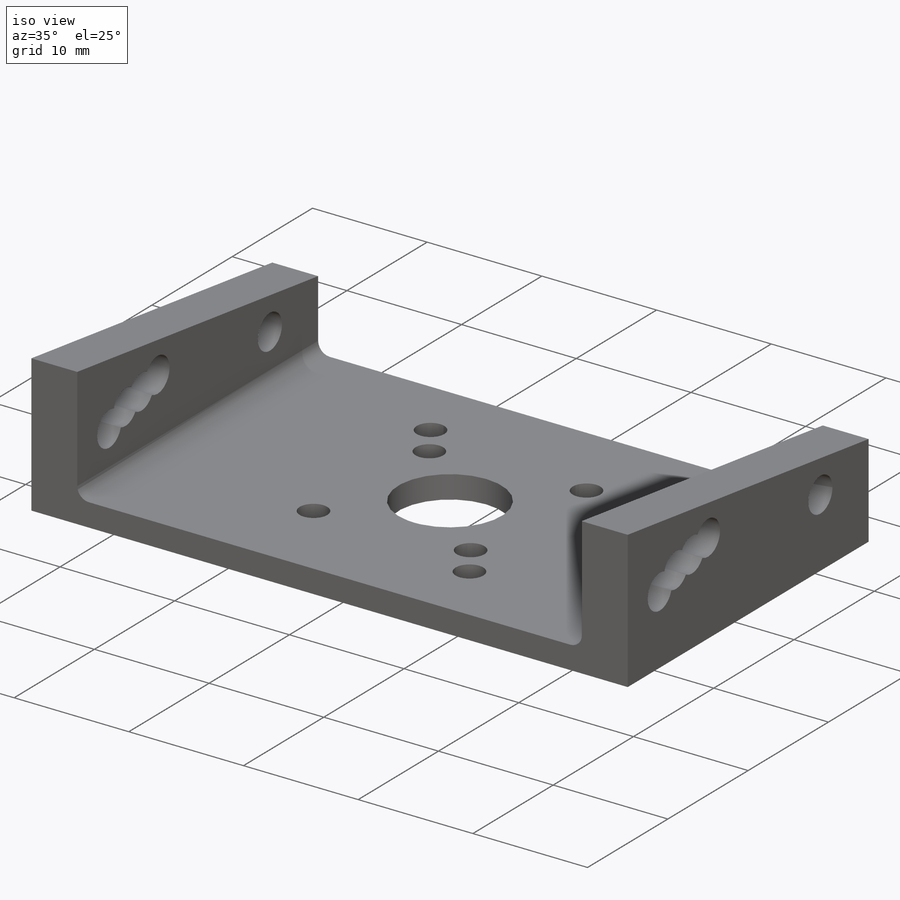
[diagram: iso view]
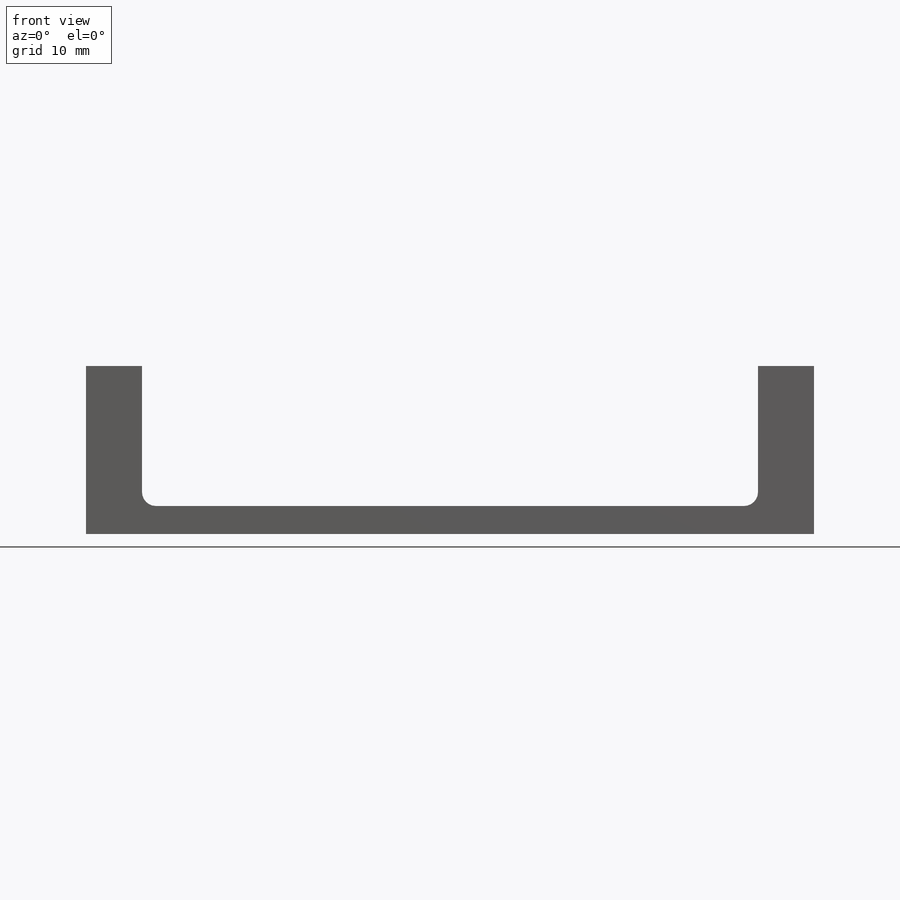
[diagram: front view]
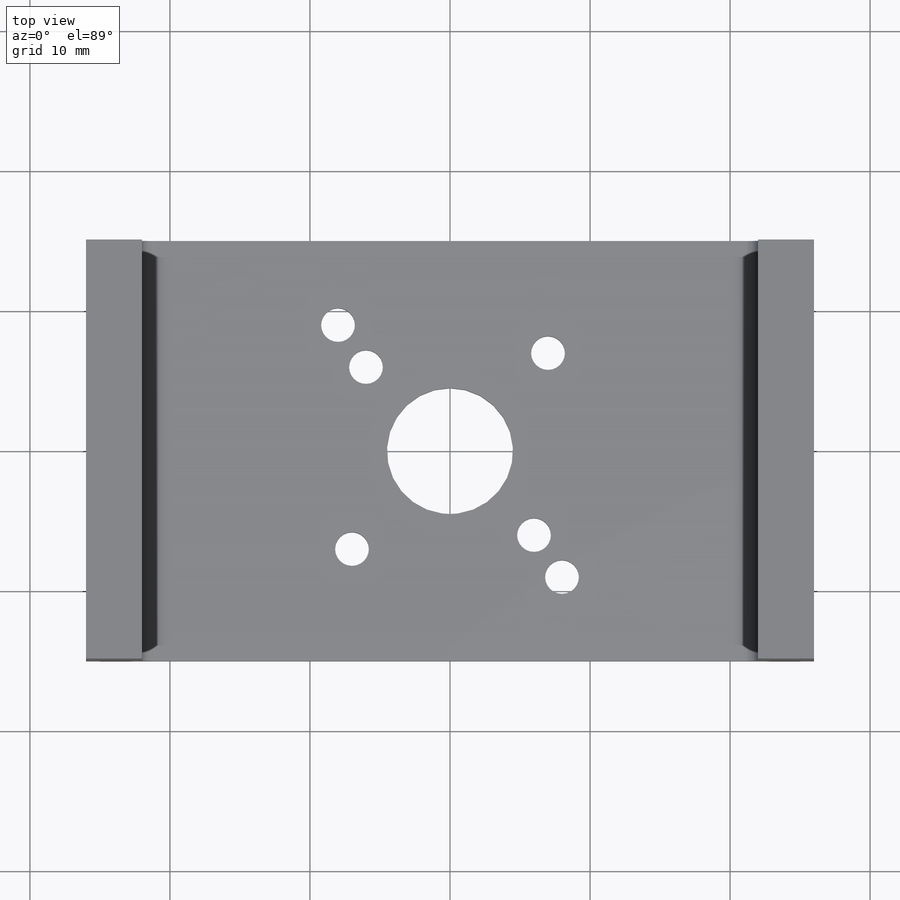
[diagram: top view]
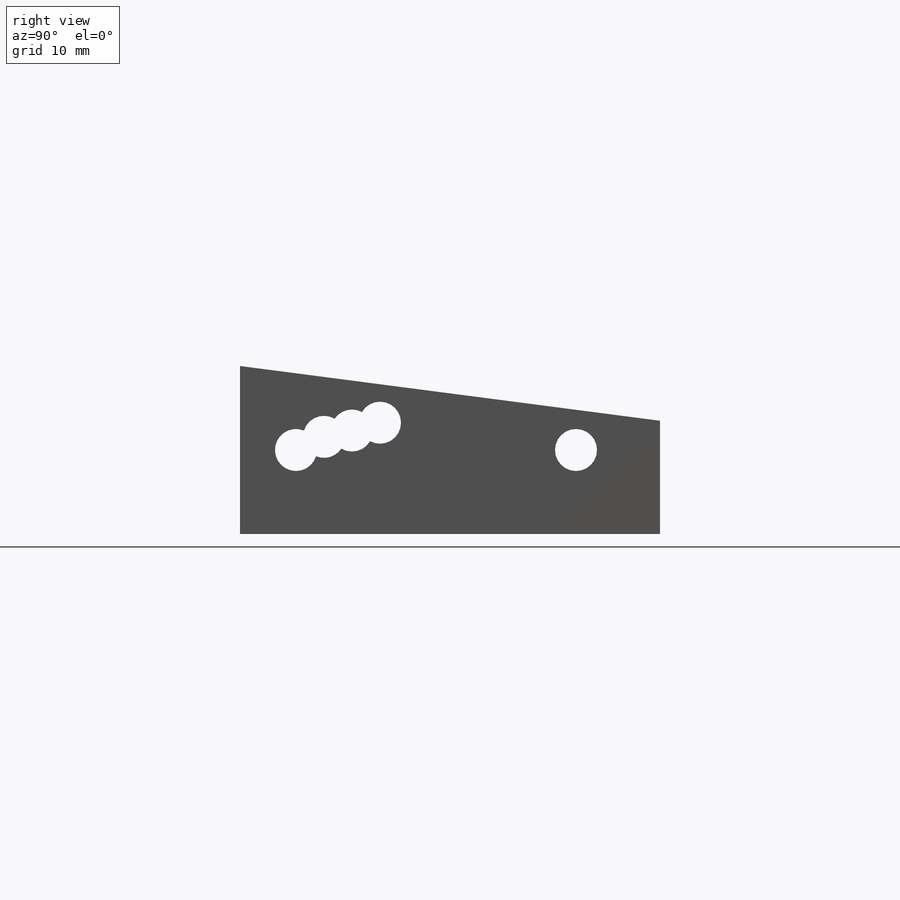
[diagram: right view]
SOLIDWORKS PART (.sldprt)
format: sldprt  version: not decoded by parser v0  size: 276,992 bytes
history: native  units: mm
features: plane x3, sketch x2, extrude x2, material x1, mirror x1, fillet x1 (+9 scaffold rows collapsed)
feature tree (19):
  scaffold x9  (default folders/planes/origin — collapsed)
  material  "Náilon 6/10"
  plane  "Plano frontal"
  plane  "Plano superior"
  plane  "Plano direito"
  sketch  "Esboço1"  dims[c1.D3=9.0mm c1.D1=52.0mm c1.D2=30.0mm c1.D4=8.0mm c1.D5=8.0mm c1.D6=8.0mm c1.D7=8.0mm c1.D8=4.0mm c1.D9=4.0mm c2.D4=7.0mm c2.D5=7.0mm c2.D6=6.0mm c2.D7=6.0mm c2.D8=8.0mm c2.D9=9.0mm c2.D10=~9.906378mm c3.D5=7.0mm c3.D10=7.0mm c3.D11=7.0mm c3.D12=6.0mm c3.D13=6.0mm c3.D14=9.0mm c3.D15=8.0mm]
  extrude  "Ressalto-extrusão1"  Depth=2mm
  sketch  "Esboço2"  dims[c1.D1=~1.45891mm c1.D3=3.0mm c1.D5=3.0mm c1.D9=3.0mm c2.D1=3.0mm c2.D2=6.0mm c2.D4=18.0mm c2.D6=30.0mm c3.D1=0.94mm c3.D5=1.56mm c3.D6=2.5mm c4.D1=18.0mm c4.D4=0.94mm c4.D5=1.39mm c4.D6=16.0mm c4.D7=14.0mm c4.D8=1.95mm c4.D10=14.0mm c5.D10=~7.929468deg c6.D10=4.0mm c6.D11=20.0mm c6.D12=10.0mm]
  extrude  "Ressalto-extrusão2"  Depth=4mm
  mirror  "Espelhar1"
  fillet  "Filete3"  Radius=1mm
decode coverage: 5 of 6 modeling features carry decoded parameters
note: ~ marks probable driven/reference dimensions
note: suppression state not decoded; provenance and decode notes live in map.json
